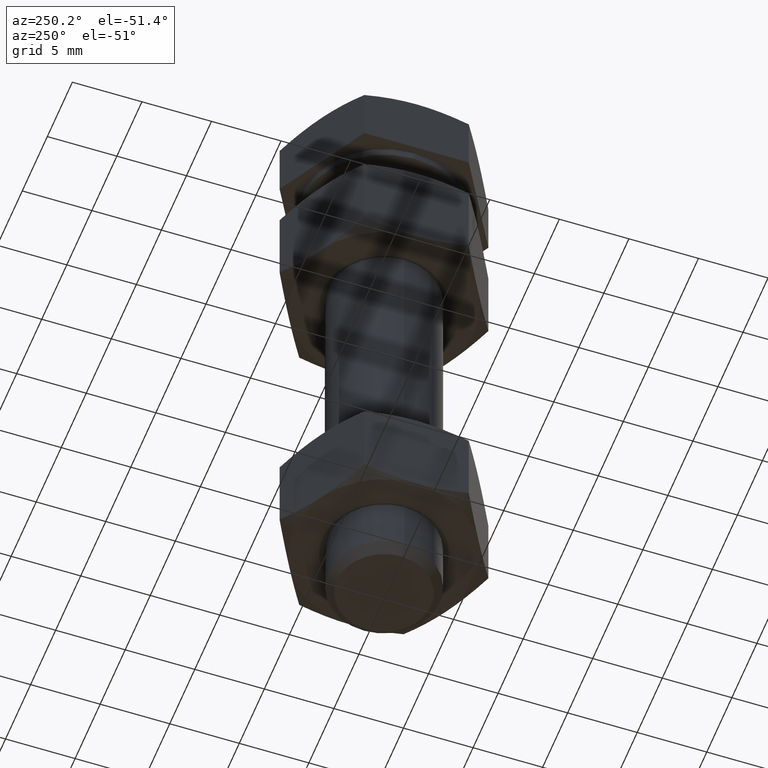
[diagram: clean part render]
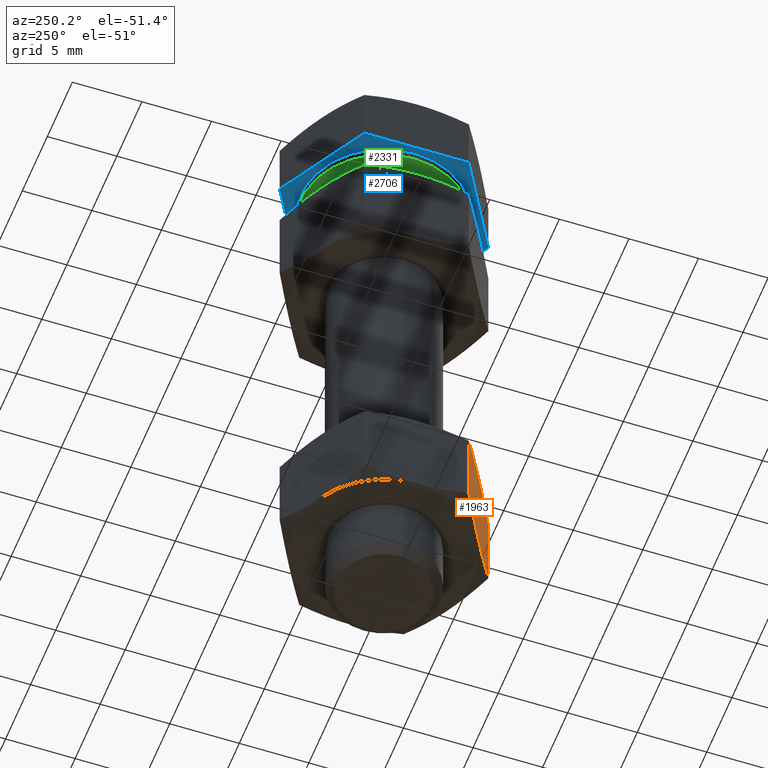
[diagram: same view with three faces highlighted in distinct colors, each labeled with its STEP entity id]
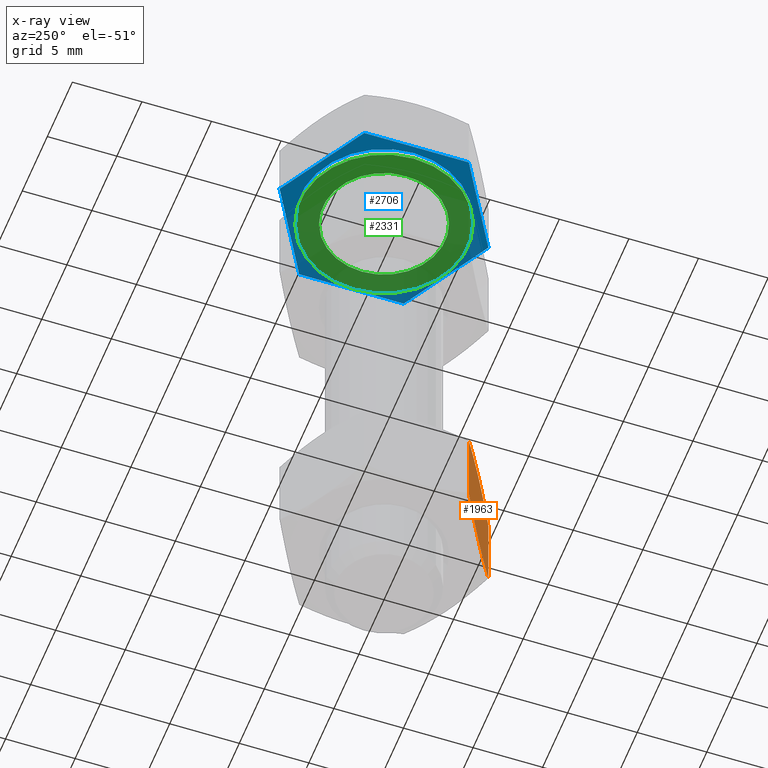
[diagram: x-ray of the same camera — body ghosted, the three highlighted faces saturated]
A machine part, auxiliary view with three faces highlighted in distinct colors.
The next image is the same camera in x-ray (body ghosted, the three faces saturated) — at least one of them is partly hidden behind the body in this view.
Their STEP definitions:

[orange] entity #1963 — the highlighted planar face has unit normal (-0.5, -0.866, 0).
#383=CARTESIAN_POINT('',(-6.499999999999996,-3.752776749732569,-35.219443416399237));
#384=VERTEX_POINT('',#383);
#391=CARTESIAN_POINT('',(-3.250000000000002,-5.629165124598839,-35.800000000000004));
#392=VERTEX_POINT('',#391);
#400=CARTESIAN_POINT('',(-6.500000000000008,-3.752776749732547,-35.219443416399237));
#401=CARTESIAN_POINT('',(-4.758330249197718,-4.758330249197680,-35.800000000000004));
#402=CARTESIAN_POINT('',(-3.250000000000002,-5.629165124598839,-35.800000000000004));
#410=(BOUNDED_CURVE()B_SPLINE_CURVE(2,(#400,#401,#402),.UNSPECIFIED.,.F.,.U.)B_SPLINE_CURVE_WITH_KNOTS((3,3),(0.0,0.380711317203909),.UNSPECIFIED.)CURVE()GEOMETRIC_REPRESENTATION_ITEM()RATIONAL_B_SPLINE_CURVE((1.0,1.037954849302053,1.0))REPRESENTATION_ITEM(''));
#411=EDGE_CURVE('',#384,#392,#410,.T.);
#461=CARTESIAN_POINT('',(-6.499999999999998,-3.752776749732571,-29.580556583600771));
#462=VERTEX_POINT('',#461);
#471=CARTESIAN_POINT('',(-3.250000000000000,-5.629165124598839,-29.000000000000004));
#472=VERTEX_POINT('',#471);
#473=CARTESIAN_POINT('',(-3.250000000000000,-5.629165124598839,-29.000000000000004));
#474=CARTESIAN_POINT('',(-4.758330249197715,-4.758330249197681,-29.000000000000004));
#475=CARTESIAN_POINT('',(-6.500000000000016,-3.752776749732542,-29.580556583600771));
#483=(BOUNDED_CURVE()B_SPLINE_CURVE(2,(#473,#474,#475),.UNSPECIFIED.,.F.,.U.)B_SPLINE_CURVE_WITH_KNOTS((3,3),(0.380711317203910,0.761422634407820),.UNSPECIFIED.)CURVE()GEOMETRIC_REPRESENTATION_ITEM()RATIONAL_B_SPLINE_CURVE((1.0,1.037954849302071,1.0))REPRESENTATION_ITEM(''));
#484=EDGE_CURVE('',#472,#462,#483,.T.);
#1894=CARTESIAN_POINT('',(1.593331E-014,-7.505553499465138,-29.580556583600771));
#1895=VERTEX_POINT('',#1894);
#1896=CARTESIAN_POINT('',(1.582995E-014,-7.505553499465138,-29.580556583600771));
#1897=CARTESIAN_POINT('',(-1.741669750802283,-6.499999999999999,-29.000000000000004));
#1898=CARTESIAN_POINT('',(-3.250000000000000,-5.629165124598839,-29.000000000000004));
#1906=(BOUNDED_CURVE()B_SPLINE_CURVE(2,(#1896,#1897,#1898),.UNSPECIFIED.,.F.,.U.)B_SPLINE_CURVE_WITH_KNOTS((3,3),(0.0,0.380711317203910),.UNSPECIFIED.)CURVE()GEOMETRIC_REPRESENTATION_ITEM()RATIONAL_B_SPLINE_CURVE((1.0,1.037954849302066,1.0))REPRESENTATION_ITEM(''));
#1907=EDGE_CURVE('',#1895,#472,#1906,.T.);
#1926=CARTESIAN_POINT('',(-6.500000000000011,-3.752776749732545,-29.000000000000004));
#1927=DIRECTION('',(-0.500000000000001,-0.866025403784438,2.002386E-017));
#1928=DIRECTION('',(0.0,0.0,1.0));
#1929=AXIS2_PLACEMENT_3D('',#1926,#1927,#1928);
#1930=PLANE('',#1929);
#1931=ORIENTED_EDGE('',*,*,#1907,.T.);
#1932=ORIENTED_EDGE('',*,*,#484,.T.);
#1933=CARTESIAN_POINT('',(-6.499999999999998,-3.752776749732571,-29.580556583600771));
#1934=DIRECTION('',(0.0,0.0,-1.0));
#1935=VECTOR('',#1934,5.638886832798466);
#1936=LINE('',#1933,#1935);
#1937=EDGE_CURVE('',#462,#384,#1936,.T.);
#1938=ORIENTED_EDGE('',*,*,#1937,.T.);
#1939=ORIENTED_EDGE('',*,*,#411,.T.);
#1940=CARTESIAN_POINT('',(4.275968E-015,-7.505553499465131,-35.219443416399237));
#1941=VERTEX_POINT('',#1940);
#1942=CARTESIAN_POINT('',(-3.250000000000002,-5.629165124598839,-35.800000000000004));
#1943=CARTESIAN_POINT('',(-1.741669750802283,-6.499999999999999,-35.800000000000004));
#1944=CARTESIAN_POINT('',(6.392175E-015,-7.505553499465131,-35.219443416399237));
#1952=(BOUNDED_CURVE()B_SPLINE_CURVE(2,(#1942,#1943,#1944),.UNSPECIFIED.,.F.,.U.)B_SPLINE_CURVE_WITH_KNOTS((3,3),(0.380711317203909,0.761422634407818),.UNSPECIFIED.)CURVE()GEOMETRIC_REPRESENTATION_ITEM()RATIONAL_B_SPLINE_CURVE((1.0,1.037954849302066,1.0))REPRESENTATION_ITEM(''));
#1953=EDGE_CURVE('',#392,#1941,#1952,.T.);
#1954=ORIENTED_EDGE('',*,*,#1953,.T.);
#1955=CARTESIAN_POINT('',(1.593331E-014,-7.505553499465138,-29.580556583600771));
#1956=DIRECTION('',(0.0,0.0,-1.0));
#1957=VECTOR('',#1956,5.638886832798466);
#1958=LINE('',#1955,#1957);
#1959=EDGE_CURVE('',#1895,#1941,#1958,.T.);
#1960=ORIENTED_EDGE('',*,*,#1959,.F.);
#1961=EDGE_LOOP('',(#1931,#1932,#1938,#1939,#1954,#1960));
#1962=FACE_OUTER_BOUND('',#1961,.T.);
#1963=ADVANCED_FACE('',(#1962),#1930,.T.);

[blue] entity #2706 — the highlighted planar face has unit normal (0, 0, 1).
#93=CARTESIAN_POINT('',(-6.000000000000001,7.347638E-016,0.600000000000000));
#94=VERTEX_POINT('',#93);
#110=CARTESIAN_POINT('',(6.000000000000001,7.347638E-016,0.600000000000000));
#111=VERTEX_POINT('',#110);
#118=CARTESIAN_POINT('',(0.0,0.0,0.600000000000000));
#119=DIRECTION('',(0.0,0.0,-1.0));
#120=DIRECTION('',(-1.0,0.0,0.0));
#121=AXIS2_PLACEMENT_3D('',#118,#119,#120);
#122=CIRCLE('',#121,6.000000000000001);
#123=EDGE_CURVE('',#111,#94,#122,.T.);
#2589=CARTESIAN_POINT('',(6.500000000000000,-3.752776749732573,0.600000000000000));
#2590=VERTEX_POINT('',#2589);
#2597=CARTESIAN_POINT('',(6.499999999999999,3.752776749732565,0.600000000000000));
#2598=VERTEX_POINT('',#2597);
#2599=CARTESIAN_POINT('',(6.500000000000000,-3.752776749732573,0.600000000000000));
#2600=DIRECTION('',(0.0,1.0,0.0));
#2601=VECTOR('',#2600,7.505553499465138);
#2602=LINE('',#2599,#2601);
#2603=EDGE_CURVE('',#2590,#2598,#2602,.T.);
#2621=CARTESIAN_POINT('',(-8.881784E-015,-7.505553499465131,0.600000000000000));
#2622=VERTEX_POINT('',#2621);
#2629=CARTESIAN_POINT('',(-8.881784E-015,-7.505553499465131,0.600000000000000));
#2630=DIRECTION('',(0.866025403784439,0.499999999999999,0.0));
#2631=VECTOR('',#2630,7.505553499465138);
#2632=LINE('',#2629,#2631);
#2633=EDGE_CURVE('',#2622,#2590,#2632,.T.);
#2646=CARTESIAN_POINT('',(-6.500000000000002,-3.752776749732563,0.600000000000000));
#2647=VERTEX_POINT('',#2646);
#2654=CARTESIAN_POINT('',(-6.500000000000002,-3.752776749732563,0.600000000000000));
#2655=DIRECTION('',(0.866025403784438,-0.500000000000001,0.0));
#2656=VECTOR('',#2655,7.505553499465130);
#2657=LINE('',#2654,#2656);
#2658=EDGE_CURVE('',#2647,#2622,#2657,.T.);
#2664=CARTESIAN_POINT('',(-6.245005E-016,0.0,0.600000000000000));
#2665=DIRECTION('',(0.0,0.0,1.0));
#2666=DIRECTION('',(1.0,0.0,0.0));
#2667=AXIS2_PLACEMENT_3D('',#2664,#2665,#2666);
#2668=PLANE('',#2667);
#2669=CARTESIAN_POINT('',(-6.500000000000002,3.752776749732573,0.600000000000000));
#2670=VERTEX_POINT('',#2669);
#2671=CARTESIAN_POINT('',(-6.500000000000002,3.752776749732573,0.600000000000000));
#2672=DIRECTION('',(0.0,-1.0,0.0));
#2673=VECTOR('',#2672,7.505553499465135);
#2674=LINE('',#2671,#2673);
#2675=EDGE_CURVE('',#2670,#2647,#2674,.T.);
#2676=ORIENTED_EDGE('',*,*,#2675,.F.);
#2677=CARTESIAN_POINT('',(9.436896E-015,7.505553499465131,0.600000000000000));
#2678=VERTEX_POINT('',#2677);
#2679=CARTESIAN_POINT('',(9.436896E-015,7.505553499465131,0.600000000000000));
#2680=DIRECTION('',(-0.866025403784440,-0.499999999999998,0.0));
#2681=VECTOR('',#2680,7.505553499465140);
#2682=LINE('',#2679,#2681);
#2683=EDGE_CURVE('',#2678,#2670,#2682,.T.);
#2684=ORIENTED_EDGE('',*,*,#2683,.F.);
#2685=CARTESIAN_POINT('',(6.499999999999999,3.752776749732565,0.600000000000000));
#2686=DIRECTION('',(-0.866025403784438,0.500000000000000,0.0));
#2687=VECTOR('',#2686,7.505553499465126);
#2688=LINE('',#2685,#2687);
#2689=EDGE_CURVE('',#2598,#2678,#2688,.T.);
#2690=ORIENTED_EDGE('',*,*,#2689,.F.);
#2691=ORIENTED_EDGE('',*,*,#2603,.F.);
#2692=ORIENTED_EDGE('',*,*,#2633,.F.);
#2693=ORIENTED_EDGE('',*,*,#2658,.F.);
#2694=EDGE_LOOP('',(#2676,#2684,#2690,#2691,#2692,#2693));
#2695=FACE_OUTER_BOUND('',#2694,.T.);
#2696=ORIENTED_EDGE('',*,*,#123,.F.);
#2697=CARTESIAN_POINT('',(0.0,0.0,0.600000000000000));
#2698=DIRECTION('',(0.0,0.0,-1.0));
#2699=DIRECTION('',(-1.0,0.0,0.0));
#2700=AXIS2_PLACEMENT_3D('',#2697,#2698,#2699);
#2701=CIRCLE('',#2700,6.000000000000001);
#2702=EDGE_CURVE('',#94,#111,#2701,.T.);
#2703=ORIENTED_EDGE('',*,*,#2702,.F.);
#2704=EDGE_LOOP('',(#2696,#2703));
#2705=FACE_BOUND('',#2704,.T.);
#2706=ADVANCED_FACE('',(#2695,#2705),#2668,.F.);

[green] entity #2331 — the highlighted planar face has unit normal (0, 0, -1).
#91=CARTESIAN_POINT('',(-6.000000000000001,7.347638E-016,0.0));
#92=VERTEX_POINT('',#91);
#101=CARTESIAN_POINT('',(6.000000000000001,7.347638E-016,0.0));
#102=VERTEX_POINT('',#101);
#103=CARTESIAN_POINT('',(0.0,0.0,0.0));
#104=DIRECTION('',(0.0,0.0,-1.0));
#105=DIRECTION('',(-1.0,0.0,0.0));
#106=AXIS2_PLACEMENT_3D('',#103,#104,#105);
#107=CIRCLE('',#106,6.000000000000001);
#108=EDGE_CURVE('',#102,#92,#107,.T.);
#299=CARTESIAN_POINT('',(4.400000000000000,-5.388268E-016,0.0));
#300=VERTEX_POINT('',#299);
#310=CARTESIAN_POINT('',(-4.400000000000000,-5.388268E-016,0.0));
#311=VERTEX_POINT('',#310);
#312=CARTESIAN_POINT('',(0.0,0.0,0.0));
#313=DIRECTION('',(0.0,0.0,-1.0));
#314=DIRECTION('',(-1.0,0.0,0.0));
#315=AXIS2_PLACEMENT_3D('',#312,#313,#314);
#316=CIRCLE('',#315,4.400000000000000);
#317=EDGE_CURVE('',#300,#311,#316,.T.);
#2302=CARTESIAN_POINT('',(0.0,0.0,0.0));
#2303=DIRECTION('',(0.0,0.0,-1.0));
#2304=DIRECTION('',(-1.0,0.0,0.0));
#2305=AXIS2_PLACEMENT_3D('',#2302,#2303,#2304);
#2306=CIRCLE('',#2305,4.400000000000000);
#2307=EDGE_CURVE('',#311,#300,#2306,.T.);
#2312=CARTESIAN_POINT('',(0.0,0.0,0.0));
#2313=DIRECTION('',(0.0,0.0,-1.0));
#2314=DIRECTION('',(-1.0,0.0,0.0));
#2315=AXIS2_PLACEMENT_3D('',#2312,#2313,#2314);
#2316=PLANE('',#2315);
#2317=ORIENTED_EDGE('',*,*,#108,.T.);
#2318=CARTESIAN_POINT('',(0.0,0.0,0.0));
#2319=DIRECTION('',(0.0,0.0,-1.0));
#2320=DIRECTION('',(-1.0,0.0,0.0));
#2321=AXIS2_PLACEMENT_3D('',#2318,#2319,#2320);
#2322=CIRCLE('',#2321,6.000000000000001);
#2323=EDGE_CURVE('',#92,#102,#2322,.T.);
#2324=ORIENTED_EDGE('',*,*,#2323,.T.);
#2325=EDGE_LOOP('',(#2317,#2324));
#2326=FACE_OUTER_BOUND('',#2325,.T.);
#2327=ORIENTED_EDGE('',*,*,#317,.F.);
#2328=ORIENTED_EDGE('',*,*,#2307,.F.);
#2329=EDGE_LOOP('',(#2327,#2328));
#2330=FACE_BOUND('',#2329,.T.);
#2331=ADVANCED_FACE('',(#2326,#2330),#2316,.T.);